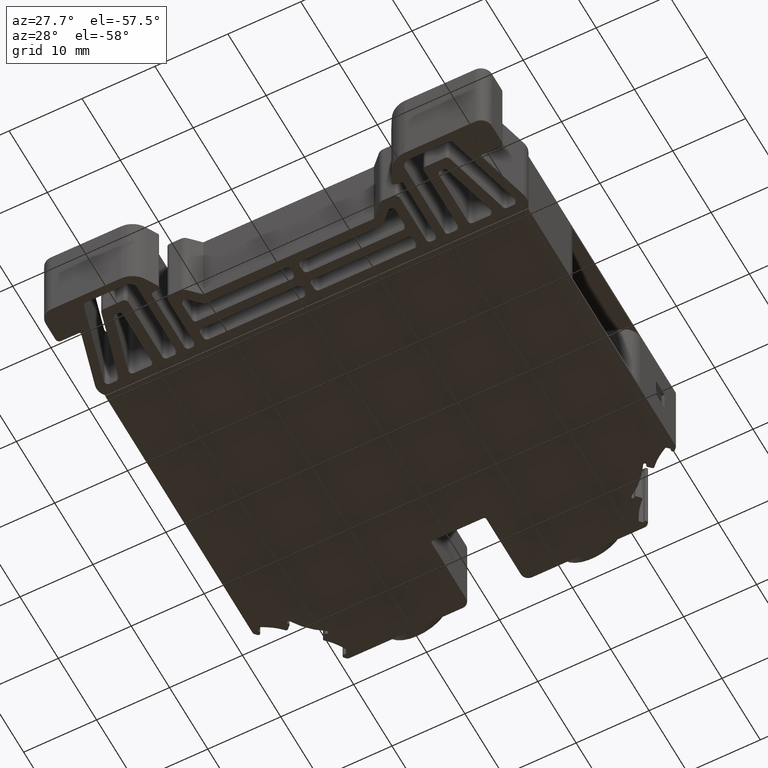
[diagram: clean part render]
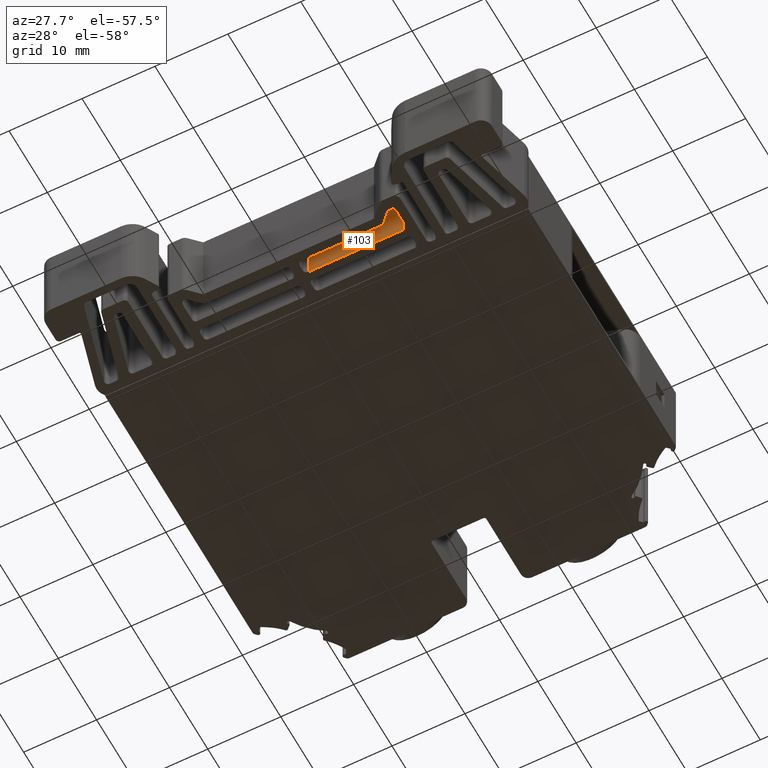
[diagram: same view with one face highlighted and labeled with its STEP entity id]
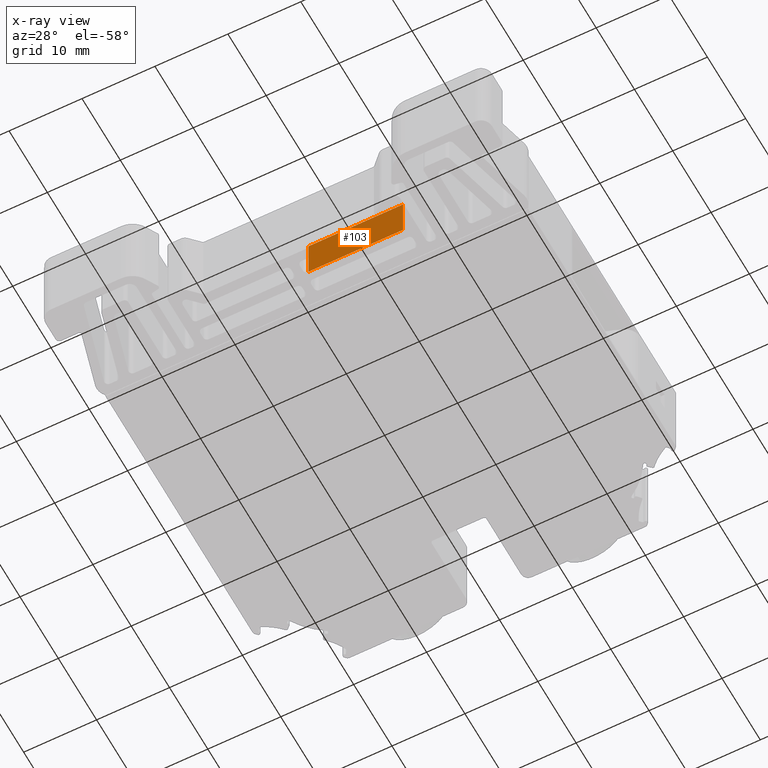
[diagram: x-ray of the same camera — body ghosted, the highlighted face saturated]
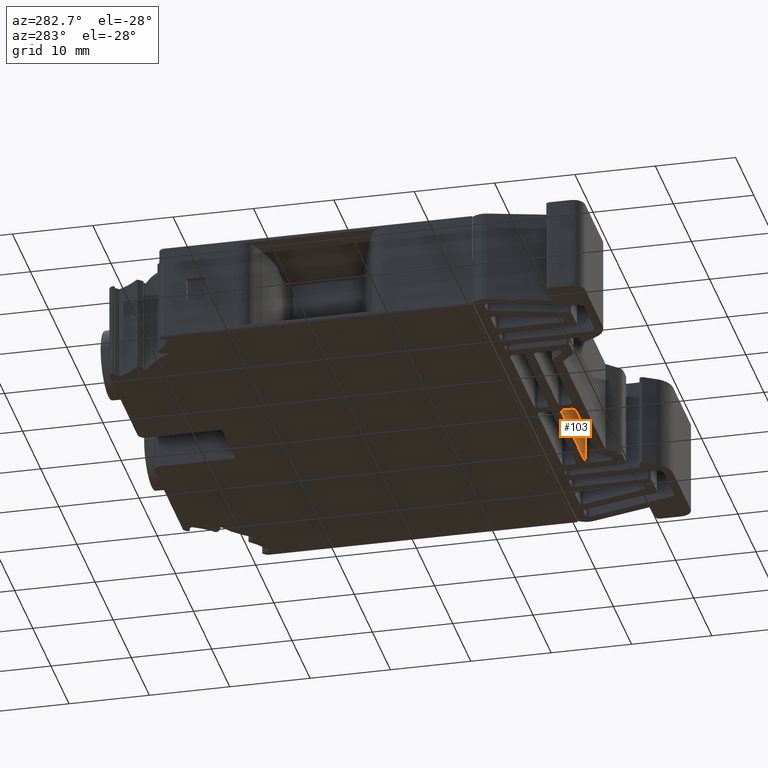
[diagram: same view with one face highlighted and labeled with its STEP entity id]
A machine part, auxiliary view. The second image highlights one B-rep face of the part: STEP entity #103.
The next image is the same camera in x-ray: the body ghosted, the highlighted face saturated — about 0% of this face is hidden behind the body in this view.
A second angle (auxiliary view) of the same face is appended — the face is thin or edge-on in the first view.
In plain terms, the highlighted planar face has unit normal (-0, 1, 0).
Its self-contained STEP definition (entity closure, byte-faithful):
#103 = ADVANCED_FACE ( 'NONE', ( #2996 ), #2993, .F. ) ;
#268 = EDGE_CURVE ( 'NONE', #3567, #3529, #956, .T. ) ;
#942 = CARTESIAN_POINT ( 'NONE',  ( 1752.294820052874900, 765.6876433158195100, 11.90000000000000000 ) ) ;
#945 = DIRECTION ( 'NONE',  ( 0.0000000000000000000, 0.0000000000000000000, 1.000000000000000000 ) ) ;
#956 = LINE ( 'NONE', #942, #12718 ) ;
#1773 = EDGE_CURVE ( 'NONE', #3521, #3567, #6698, .T. ) ;
#2746 = EDGE_CURVE ( 'NONE', #3529, #3612, #11552, .T. ) ;
#2747 = EDGE_CURVE ( 'NONE', #3612, #3521, #11579, .T. ) ;
#2993 = PLANE ( 'NONE',  #12990 ) ;
#2996 = FACE_OUTER_BOUND ( 'NONE', #3378, .T. ) ;
#3017 = DIRECTION ( 'NONE',  ( -1.000000000000000000, -8.540175855036751300E-015, 0.0000000000000000000 ) ) ;
#3020 = DIRECTION ( 'NONE',  ( -8.540175855036751300E-015, 1.000000000000000000, 0.0000000000000000000 ) ) ;
#3022 = CARTESIAN_POINT ( 'NONE',  ( 1701.967527464065100, 765.6876433158190600, 11.90000000000000000 ) ) ;
#3378 = EDGE_LOOP ( 'NONE', ( #13547, #13655, #13575, #13548 ) ) ;
#3521 = VERTEX_POINT ( 'NONE', #11682 ) ;
#3529 = VERTEX_POINT ( 'NONE', #11654 ) ;
#3567 = VERTEX_POINT ( 'NONE', #11734 ) ;
#3612 = VERTEX_POINT ( 'NONE', #11818 ) ;
#4296 = VECTOR ( 'NONE', #11550, 1000.000000000000000 ) ;
#4365 = VECTOR ( 'NONE', #11572, 1000.000000000000000 ) ;
#4731 = VECTOR ( 'NONE', #6747, 1000.000000000000000 ) ;
#6698 = LINE ( 'NONE', #6709, #4731 ) ;
#6709 = CARTESIAN_POINT ( 'NONE',  ( 1701.967527464065100, 765.6876433158200800, 0.1499999999999999900 ) ) ;
#6747 = DIRECTION ( 'NONE',  ( -1.000000000000000000, 0.0000000000000000000, -0.0000000000000000000 ) ) ;
#11548 = CARTESIAN_POINT ( 'NONE',  ( 1701.967527464065100, 765.6876433158190600, 5.899999999987859800 ) ) ;
#11550 = DIRECTION ( 'NONE',  ( 1.000000000000000000, 8.540175855036751300E-015, -0.0000000000000000000 ) ) ;
#11551 = CARTESIAN_POINT ( 'NONE',  ( 1765.294821967010000, 765.6876433158196300, 11.90000000000000000 ) ) ;
#11552 = LINE ( 'NONE', #11548, #4296 ) ;
#11572 = DIRECTION ( 'NONE',  ( -0.0000000000000000000, -0.0000000000000000000, -1.000000000000000000 ) ) ;
#11579 = LINE ( 'NONE', #11551, #4365 ) ;
#11654 = CARTESIAN_POINT ( 'NONE',  ( 1752.294820052874900, 765.6876433158197400, 5.899999999987859800 ) ) ;
#11682 = CARTESIAN_POINT ( 'NONE',  ( 1765.294821967010200, 765.6876433158198600, 0.1500000000000004700 ) ) ;
#11734 = CARTESIAN_POINT ( 'NONE',  ( 1752.294820052874900, 765.6876433158197400, 0.1500000000000004700 ) ) ;
#11818 = CARTESIAN_POINT ( 'NONE',  ( 1765.294821967010000, 765.6876433158198600, 5.899999999987859800 ) ) ;
#12718 = VECTOR ( 'NONE', #945, 1000.000000000000000 ) ;
#12990 = AXIS2_PLACEMENT_3D ( 'NONE', #3022, #3020, #3017 ) ;
#13547 = ORIENTED_EDGE ( 'NONE', *, *, #2746, .F. ) ;
#13548 = ORIENTED_EDGE ( 'NONE', *, *, #2747, .F. ) ;
#13575 = ORIENTED_EDGE ( 'NONE', *, *, #1773, .F. ) ;
#13655 = ORIENTED_EDGE ( 'NONE', *, *, #268, .F. ) ;